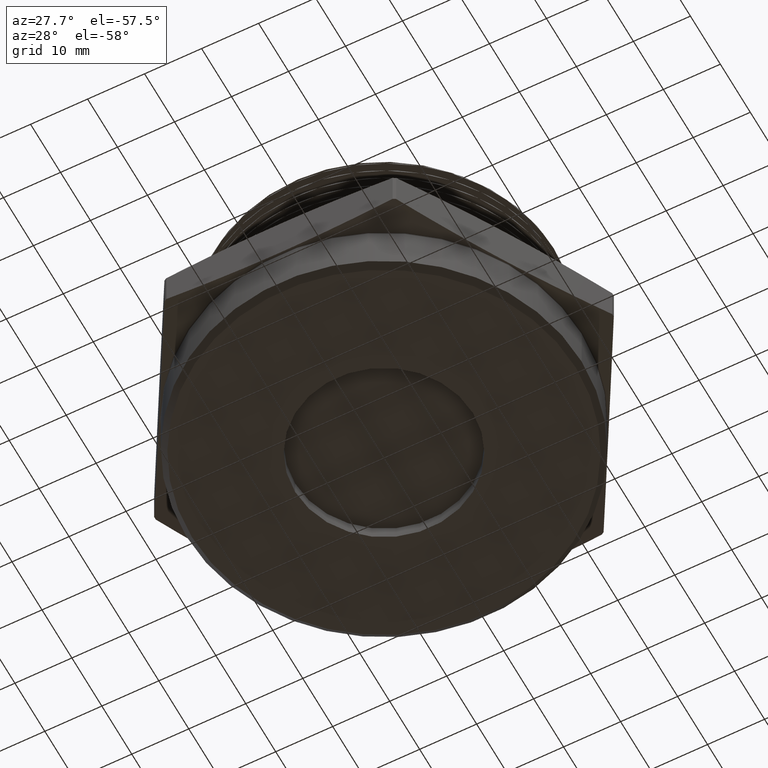
[diagram: clean part render]
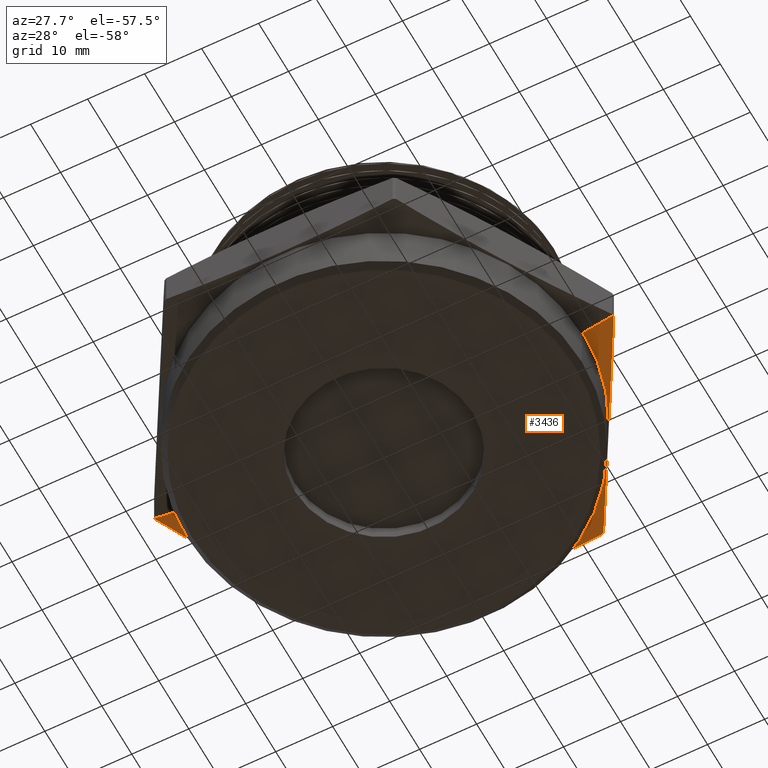
[diagram: same view with one face highlighted and labeled with its STEP entity id]
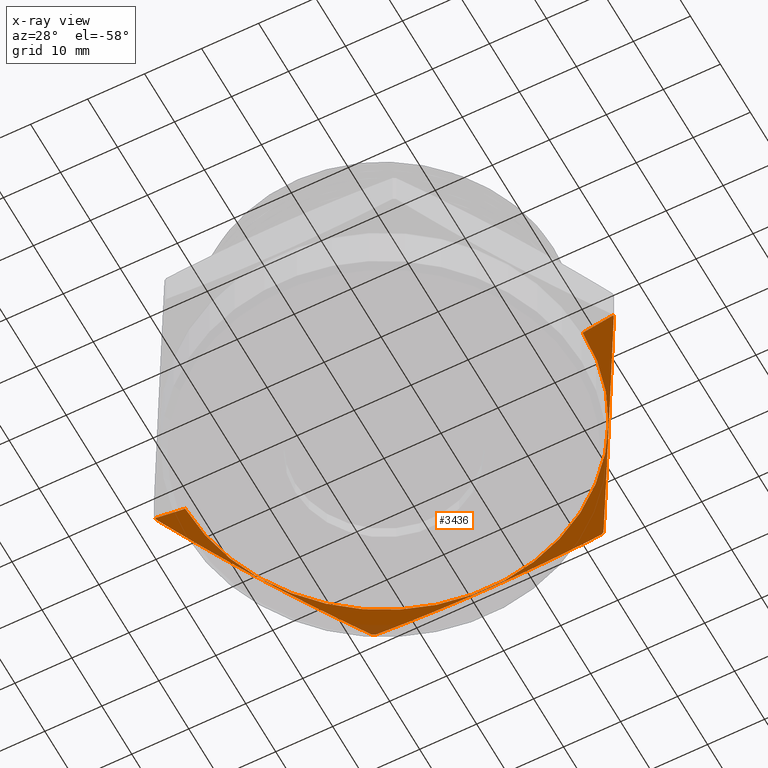
[diagram: x-ray of the same camera — body ghosted, the highlighted face saturated]
A machine part, auxiliary view. The second image highlights one B-rep face of the part: STEP entity #3436.
The next image is the same camera in x-ray: the body ghosted, the highlighted face saturated — about 4% of this face is hidden behind the body in this view.
In plain terms, the highlighted conical surface has half-angle 78 deg.
Its self-contained STEP definition (entity closure, byte-faithful):
#10 = B_SPLINE_CURVE_WITH_KNOTS ( 'NONE', 3,
 ( #6804, #6805, #6809, #6810, #6811, #6812, #6813, #6814, #6815 ),
 .UNSPECIFIED., .F., .F.,
 ( 4, 2, 1, 2, 4 ),
 ( 1.903613379434268900E-006, 0.009930605507436527200, 0.01985930740149361900, 0.02978800929555071300, 0.03971671118960780300 ),
 .UNSPECIFIED. ) ;
#12 = B_SPLINE_CURVE_WITH_KNOTS ( 'NONE', 3,
 ( #6816, #6817, #6821, #6822, #6823, #6824, #6825, #6826, #6827, #6828 ),
 .UNSPECIFIED., .F., .F.,
 ( 4, 2, 2, 2, 4 ),
 ( 0.07652353289355171000, 0.08648215368286722700, 0.09644077447218275800, 0.1063993952614982900, 0.1163580160508138200 ),
 .UNSPECIFIED. ) ;
#14 = B_SPLINE_CURVE_WITH_KNOTS ( 'NONE', 3,
 ( #6829, #6830, #6834, #6835, #6836, #6837, #6838, #6839, #6840 ),
 .UNSPECIFIED., .F., .F.,
 ( 4, 2, 1, 2, 4 ),
 ( 1.903613379562531700E-006, 0.009930605507436655500, 0.01985930740149375100, 0.02978800929555084500, 0.03971671118960794200 ),
 .UNSPECIFIED. ) ;
#374 = AXIS2_PLACEMENT_3D ( 'NONE', #4008, #4003, #4009 ) ;
#3011 = FACE_OUTER_BOUND ( 'NONE', #3321, .T. ) ;
#3019 = CONICAL_SURFACE ( 'NONE', #374, 1.581713240271471100, 1.361356816555583800 ) ;
#3051 = CARTESIAN_POINT ( 'NONE',  ( 0.7817875507131566400, 1.375000000000000000, 0.04606382122047169400 ) ) ;
#3199 = VERTEX_POINT ( 'NONE', #8014 ) ;
#3202 = VERTEX_POINT ( 'NONE', #8006 ) ;
#3231 = VERTEX_POINT ( 'NONE', #3051 ) ;
#3321 = EDGE_LOOP ( 'NONE', ( #7987, #7978, #7992, #7977, #7991, #7965, #7962, #7950, #7990, #6882 ) ) ;
#3436 = ADVANCED_FACE ( 'NONE', ( #3011 ), #3019, .T. ) ;
#4003 = DIRECTION ( 'NONE',  ( 1.254986547952384500E-016, 0.0000000000000000000, 1.000000000000000000 ) ) ;
#4008 = CARTESIAN_POINT ( 'NONE',  ( 5.780947597897531700E-018, 0.0000000000000000000, 0.04606382122047149300 ) ) ;
#4009 = DIRECTION ( 'NONE',  ( 1.000000000000000000, 0.0000000000000000000, -1.241385413900429200E-016 ) ) ;
#4048 = CARTESIAN_POINT ( 'NONE',  ( 1.581713240271471100, 0.0000000000000000000, 0.04606382122047129900 ) ) ;
#4068 = CARTESIAN_POINT ( 'NONE',  ( 0.7998911548470237800, 1.364547879280009400, 0.04606382122047139600 ) ) ;
#4793 = VERTEX_POINT ( 'NONE', #4048 ) ;
#4815 = VERTEX_POINT ( 'NONE', #4068 ) ;
#5426 = CARTESIAN_POINT ( 'NONE',  ( -0.7817875507131566400, 1.375000000000000000, 0.04606382122047159000 ) ) ;
#5454 = CARTESIAN_POINT ( 'NONE',  ( -1.581713240271471100, 0.0000000000000000000, 0.04606382122047169400 ) ) ;
#5456 = CARTESIAN_POINT ( 'NONE',  ( -1.372920883091823800, 1.681343164960959800E-016, 0.001683635675388181500 ) ) ;
#5460 = CARTESIAN_POINT ( 'NONE',  ( 1.372920883091823800, 0.0000000000000000000, 0.001683635675387831300 ) ) ;
#5461 = CARTESIAN_POINT ( 'NONE',  ( -1.581678705560181500, 0.01045212071999071300, 0.04606382122047169400 ) ) ;
#5520 = AXIS2_PLACEMENT_3D ( 'NONE', #6801, #6802, #6803 ) ;
#5521 = AXIS2_PLACEMENT_3D ( 'NONE', #6806, #6807, #6808 ) ;
#5522 = AXIS2_PLACEMENT_3D ( 'NONE', #6818, #6819, #6820 ) ;
#5523 = AXIS2_PLACEMENT_3D ( 'NONE', #6831, #6832, #6833 ) ;
#5524 = AXIS2_PLACEMENT_3D ( 'NONE', #6841, #6842, #6843 ) ;
#6794 = DIRECTION ( 'NONE',  ( -0.9781476007338069100, 1.197885328332319900E-016, 0.2079116908177528500 ) ) ;
#6798 = DIRECTION ( 'NONE',  ( 0.9781476007338071300, 0.0000000000000000000, 0.2079116908177526300 ) ) ;
#6799 = CARTESIAN_POINT ( 'NONE',  ( 1.581713240271471100, 0.0000000000000000000, 0.04606382122047129900 ) ) ;
#6800 = CARTESIAN_POINT ( 'NONE',  ( -1.581713240271471100, 1.937040056867445500E-016, 0.04606382122047169400 ) ) ;
#6801 = CARTESIAN_POINT ( 'NONE',  ( 1.284576283725905500E-017, 0.0000000000000000000, 0.001683635675388010700 ) ) ;
#6802 = DIRECTION ( 'NONE',  ( 1.254986547952384500E-016, 0.0000000000000000000, 1.000000000000000000 ) ) ;
#6803 = DIRECTION ( 'NONE',  ( 1.000000000000000000, 0.0000000000000000000, -1.255288588805577600E-016 ) ) ;
#6804 = CARTESIAN_POINT ( 'NONE',  ( -0.7998911548470244400, 1.364547879280008800, 0.04606382122047169400 ) ) ;
#6805 = CARTESIAN_POINT ( 'NONE',  ( -0.8650401174064541500, 1.251706566066674400, 0.03237478046069743000 ) ) ;
#6806 = CARTESIAN_POINT ( 'NONE',  ( 5.780947597897531700E-018, 0.0000000000000000000, 0.04606382122047149300 ) ) ;
#6807 = DIRECTION ( 'NONE',  ( -1.254986547952384500E-016, -0.0000000000000000000, -1.000000000000000000 ) ) ;
#6808 = DIRECTION ( 'NONE',  ( -1.000000000000000000, 0.0000000000000000000, 1.241385413900429200E-016 ) ) ;
#6809 = CARTESIAN_POINT ( 'NONE',  ( -0.9301890799658838500, 1.138865252853339200, 0.02127979410151632100 ) ) ;
#6810 = CARTESIAN_POINT ( 'NONE',  ( -1.060487005084743300, 0.9131826264266694700, 0.006132968187239073100 ) ) ;
#6811 = CARTESIAN_POINT ( 'NONE',  ( -1.190784930203602700, 0.6874999999999996700, -0.001881836953839036600 ) ) ;
#6812 = CARTESIAN_POINT ( 'NONE',  ( -1.321082855322462700, 0.4618173735733299700, 0.006132968187239067100 ) ) ;
#6813 = CARTESIAN_POINT ( 'NONE',  ( -1.451380780441321900, 0.2361347471466603800, 0.02127979410151635200 ) ) ;
#6814 = CARTESIAN_POINT ( 'NONE',  ( -1.516529743000751800, 0.1232934339333254800, 0.03237478046069750700 ) ) ;
#6815 = CARTESIAN_POINT ( 'NONE',  ( -1.581678705560181500, 0.01045212071999071300, 0.04606382122047169400 ) ) ;
#6816 = CARTESIAN_POINT ( 'NONE',  ( 0.7817875507131566400, 1.375000000000000000, 0.04606382122047169400 ) ) ;
#6817 = CARTESIAN_POINT ( 'NONE',  ( 0.6517690188196211300, 1.375000000000000200, 0.03240413338589520600 ) ) ;
#6818 = CARTESIAN_POINT ( 'NONE',  ( 5.780947597897531700E-018, 0.0000000000000000000, 0.04606382122047149300 ) ) ;
#6819 = DIRECTION ( 'NONE',  ( -1.254986547952384500E-016, -0.0000000000000000000, -1.000000000000000000 ) ) ;
#6820 = DIRECTION ( 'NONE',  ( -1.000000000000000000, 0.0000000000000000000, 1.241385413900429200E-016 ) ) ;
#6821 = CARTESIAN_POINT ( 'NONE',  ( 0.5216927118626062400, 1.375000000000000000, 0.02132047231032512700 ) ) ;
#6822 = CARTESIAN_POINT ( 'NONE',  ( 0.2613827868470721700, 1.375000000000000000, 0.006167207480143550900 ) ) ;
#6823 = CARTESIAN_POINT ( 'NONE',  ( 0.1311481683233737500, 1.375000000000000000, 0.002142211639687543200 ) ) ;
#6824 = CARTESIAN_POINT ( 'NONE',  ( -0.1295008694142240600, 1.374999999999999300, 0.002109024465002107700 ) ) ;
#6825 = CARTESIAN_POINT ( 'NONE',  ( -0.2599153173382532900, 1.375000000000000000, 0.006102113234283274400 ) ) ;
#6826 = CARTESIAN_POINT ( 'NONE',  ( -0.5209049358096949900, 1.375000000000000000, 0.02125445821051955700 ) ) ;
#6827 = CARTESIAN_POINT ( 'NONE',  ( -0.6515949468959757500, 1.375000000000000200, 0.03238584546875673800 ) ) ;
#6828 = CARTESIAN_POINT ( 'NONE',  ( -0.7817875507131566400, 1.375000000000000000, 0.04606382122047159000 ) ) ;
#6829 = CARTESIAN_POINT ( 'NONE',  ( 1.581678705560181300, 0.01045212071999139700, 0.04606382122047169400 ) ) ;
#6830 = CARTESIAN_POINT ( 'NONE',  ( 1.516529743000751800, 0.1232934339333264500, 0.03237478046069709700 ) ) ;
#6831 = CARTESIAN_POINT ( 'NONE',  ( 5.780947597897531700E-018, 0.0000000000000000000, 0.04606382122047149300 ) ) ;
#6832 = DIRECTION ( 'NONE',  ( -1.254986547952384500E-016, -0.0000000000000000000, -1.000000000000000000 ) ) ;
#6833 = DIRECTION ( 'NONE',  ( -1.000000000000000000, 0.0000000000000000000, 1.241385413900429200E-016 ) ) ;
#6834 = CARTESIAN_POINT ( 'NONE',  ( 1.451380780441321500, 0.2361347471466614100, 0.02127979410151599800 ) ) ;
#6835 = CARTESIAN_POINT ( 'NONE',  ( 1.321082855322461600, 0.4618173735733310800, 0.006132968187238750500 ) ) ;
#6836 = CARTESIAN_POINT ( 'NONE',  ( 1.190784930203602200, 0.6875000000000008900, -0.001881836953839386000 ) ) ;
#6837 = CARTESIAN_POINT ( 'NONE',  ( 1.060487005084742600, 0.9131826264266698100, 0.006132968187238806900 ) ) ;
#6838 = CARTESIAN_POINT ( 'NONE',  ( 0.9301890799658832900, 1.138865252853340100, 0.02127979410151610900 ) ) ;
#6839 = CARTESIAN_POINT ( 'NONE',  ( 0.8650401174064537000, 1.251706566066674900, 0.03237478046069728500 ) ) ;
#6840 = CARTESIAN_POINT ( 'NONE',  ( 0.7998911548470237800, 1.364547879280009400, 0.04606382122047139600 ) ) ;
#6841 = CARTESIAN_POINT ( 'NONE',  ( 5.780947597897531700E-018, 0.0000000000000000000, 0.04606382122047149300 ) ) ;
#6842 = DIRECTION ( 'NONE',  ( -1.254986547952384500E-016, -0.0000000000000000000, -1.000000000000000000 ) ) ;
#6843 = DIRECTION ( 'NONE',  ( -1.000000000000000000, 0.0000000000000000000, 1.241385413900429200E-016 ) ) ;
#6852 = VERTEX_POINT ( 'NONE', #5426 ) ;
#6882 = ORIENTED_EDGE ( 'NONE', *, *, #7071, .F. ) ;
#6990 = VERTEX_POINT ( 'NONE', #5454 ) ;
#6991 = VERTEX_POINT ( 'NONE', #5460 ) ;
#6992 = VERTEX_POINT ( 'NONE', #5461 ) ;
#6993 = VERTEX_POINT ( 'NONE', #5456 ) ;
#7062 = EDGE_CURVE ( 'NONE', #6991, #6993, #8022, .T. ) ;
#7063 = EDGE_CURVE ( 'NONE', #6993, #6990, #8024, .T. ) ;
#7064 = EDGE_CURVE ( 'NONE', #6990, #6992, #8023, .T. ) ;
#7065 = EDGE_CURVE ( 'NONE', #3199, #6992, #10, .T. ) ;
#7066 = EDGE_CURVE ( 'NONE', #3199, #6852, #8021, .T. ) ;
#7067 = EDGE_CURVE ( 'NONE', #3231, #6852, #12, .T. ) ;
#7068 = EDGE_CURVE ( 'NONE', #3231, #4815, #8027, .T. ) ;
#7069 = EDGE_CURVE ( 'NONE', #3202, #4815, #14, .T. ) ;
#7070 = EDGE_CURVE ( 'NONE', #3202, #4793, #8028, .T. ) ;
#7071 = EDGE_CURVE ( 'NONE', #6991, #4793, #8026, .T. ) ;
#7950 = ORIENTED_EDGE ( 'NONE', *, *, #7069, .F. ) ;
#7962 = ORIENTED_EDGE ( 'NONE', *, *, #7068, .T. ) ;
#7965 = ORIENTED_EDGE ( 'NONE', *, *, #7067, .F. ) ;
#7977 = ORIENTED_EDGE ( 'NONE', *, *, #7065, .F. ) ;
#7978 = ORIENTED_EDGE ( 'NONE', *, *, #7063, .T. ) ;
#7987 = ORIENTED_EDGE ( 'NONE', *, *, #7062, .T. ) ;
#7990 = ORIENTED_EDGE ( 'NONE', *, *, #7070, .T. ) ;
#7991 = ORIENTED_EDGE ( 'NONE', *, *, #7066, .T. ) ;
#7992 = ORIENTED_EDGE ( 'NONE', *, *, #7064, .T. ) ;
#8006 = CARTESIAN_POINT ( 'NONE',  ( 1.581678705560181300, 0.01045212071999139700, 0.04606382122047169400 ) ) ;
#8014 = CARTESIAN_POINT ( 'NONE',  ( -0.7998911548470244400, 1.364547879280008800, 0.04606382122047169400 ) ) ;
#8021 = CIRCLE ( 'NONE', #5522, 1.581713240271471100 ) ;
#8022 = CIRCLE ( 'NONE', #5520, 1.372920883091822500 ) ;
#8023 = CIRCLE ( 'NONE', #5521, 1.581713240271471100 ) ;
#8024 = LINE ( 'NONE', #6800, #8025 ) ;
#8025 = VECTOR ( 'NONE', #6794, 39.37007874015748100 ) ;
#8026 = LINE ( 'NONE', #6799, #8031 ) ;
#8027 = CIRCLE ( 'NONE', #5523, 1.581713240271471100 ) ;
#8028 = CIRCLE ( 'NONE', #5524, 1.581713240271471100 ) ;
#8031 = VECTOR ( 'NONE', #6798, 39.37007874015748900 ) ;